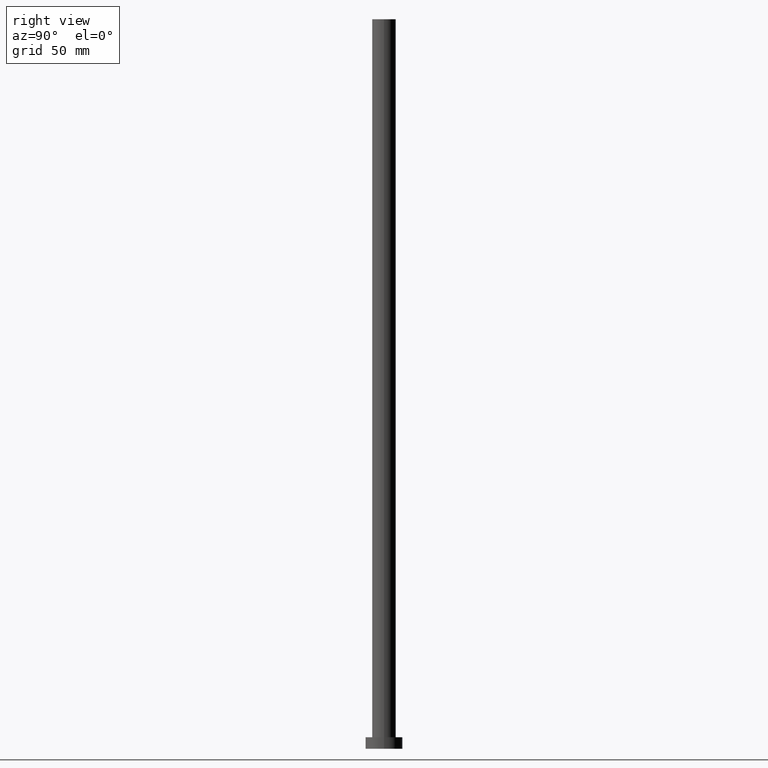
[diagram: clean part render]
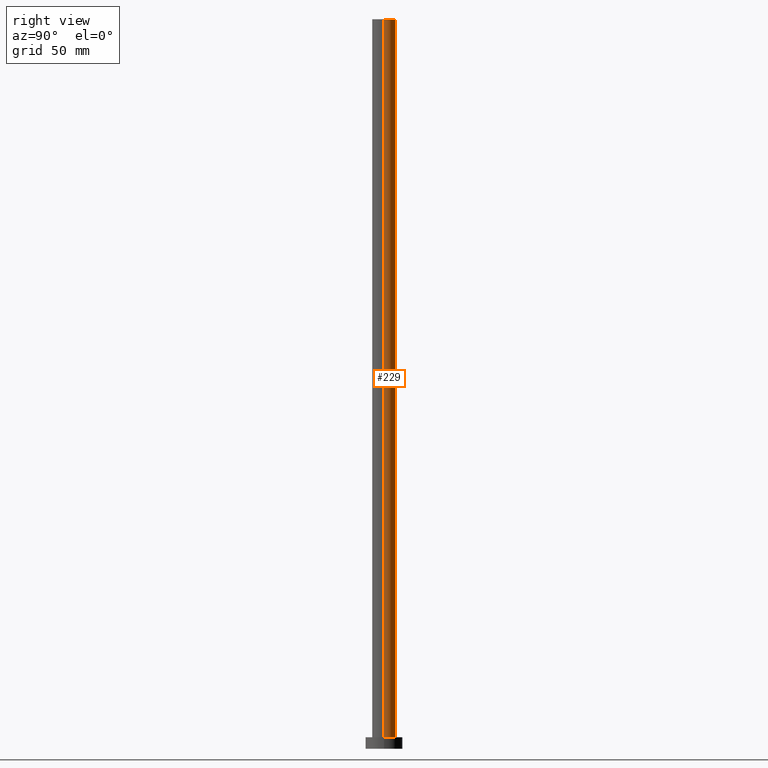
[diagram: same view with one face highlighted and labeled with its STEP entity id]
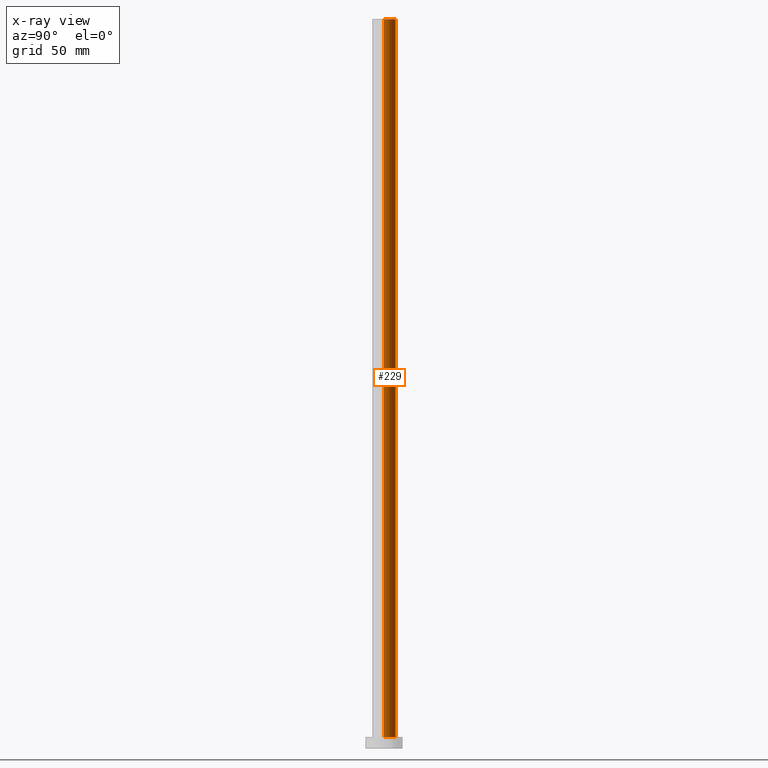
[diagram: x-ray of the same camera — body ghosted, the highlighted face saturated]
A machine part, right view. The second image highlights one B-rep face of the part: STEP entity #229.
The next image is the same camera in x-ray: the body ghosted, the highlighted face saturated — about 0% of this face is hidden behind the body in this view.
In plain terms, the highlighted cylindrical surface (edge-blend (fillet) strip) has radius 5.1 mm, axis along (-0, -0, -1).
Its self-contained STEP definition (entity closure, byte-faithful):
#3 = LINE ( 'NONE', #246, #227 ) ;
#7 = LINE ( 'NONE', #194, #36 ) ;
#10 = EDGE_LOOP ( 'NONE', ( #131, #136, #201, #182 ) ) ;
#24 = CARTESIAN_POINT ( 'NONE',  ( 0.000000000000000000, 0.000000000000000000, 5.000000000000000000 ) ) ;
#25 = DIRECTION ( 'NONE',  ( -1.000000000000000000, 0.000000000000000000, 0.000000000000000000 ) ) ;
#29 = DIRECTION ( 'NONE',  ( -0.000000000000000000, -0.000000000000000000, -1.000000000000000000 ) ) ;
#30 = VERTEX_POINT ( 'NONE', #145 ) ;
#36 = VECTOR ( 'NONE', #109, 1000.000000000000000 ) ;
#48 = CIRCLE ( 'NONE', #207, 5.100000000000001421 ) ;
#51 = VERTEX_POINT ( 'NONE', #163 ) ;
#58 = DIRECTION ( 'NONE',  ( 0.000000000000000000, 0.000000000000000000, 1.000000000000000000 ) ) ;
#61 = CARTESIAN_POINT ( 'NONE',  ( 0.000000000000000000, 0.000000000000000000, 315.0000000000000000 ) ) ;
#64 = DIRECTION ( 'NONE',  ( 1.000000000000000000, 0.000000000000000000, 0.000000000000000000 ) ) ;
#70 = VERTEX_POINT ( 'NONE', #167 ) ;
#83 = CARTESIAN_POINT ( 'NONE',  ( 5.100000000000001421, 6.245698675651502811E-16, 315.0000000000000000 ) ) ;
#89 = CARTESIAN_POINT ( 'NONE',  ( 0.000000000000000000, 0.000000000000000000, 315.0000000000000000 ) ) ;
#92 = VERTEX_POINT ( 'NONE', #83 ) ;
#103 = FACE_OUTER_BOUND ( 'NONE', #10, .T. ) ;
#109 = DIRECTION ( 'NONE',  ( -0.000000000000000000, -0.000000000000000000, -1.000000000000000000 ) ) ;
#128 = EDGE_CURVE ( 'NONE', #92, #70, #251, .T. ) ;
#131 = ORIENTED_EDGE ( 'NONE', *, *, #128, .F. ) ;
#136 = ORIENTED_EDGE ( 'NONE', *, *, #175, .T. ) ;
#145 = CARTESIAN_POINT ( 'NONE',  ( 5.100000000000001421, 6.245698675651502811E-16, 5.000000000000000000 ) ) ;
#163 = CARTESIAN_POINT ( 'NONE',  ( -5.100000000000001421, 0.000000000000000000, 5.000000000000000000 ) ) ;
#167 = CARTESIAN_POINT ( 'NONE',  ( -5.100000000000001421, 0.000000000000000000, 315.0000000000000000 ) ) ;
#175 = EDGE_CURVE ( 'NONE', #92, #30, #3, .T. ) ;
#176 = DIRECTION ( 'NONE',  ( 0.000000000000000000, 0.000000000000000000, 1.000000000000000000 ) ) ;
#182 = ORIENTED_EDGE ( 'NONE', *, *, #254, .F. ) ;
#194 = CARTESIAN_POINT ( 'NONE',  ( -5.100000000000001421, 0.000000000000000000, 315.0000000000000000 ) ) ;
#200 = AXIS2_PLACEMENT_3D ( 'NONE', #89, #29, #25 ) ;
#201 = ORIENTED_EDGE ( 'NONE', *, *, #213, .T. ) ;
#203 = DIRECTION ( 'NONE',  ( 1.000000000000000000, 0.000000000000000000, 0.000000000000000000 ) ) ;
#205 = AXIS2_PLACEMENT_3D ( 'NONE', #61, #58, #203 ) ;
#207 = AXIS2_PLACEMENT_3D ( 'NONE', #24, #176, #64 ) ;
#213 = EDGE_CURVE ( 'NONE', #30, #51, #48, .T. ) ;
#227 = VECTOR ( 'NONE', #228, 1000.000000000000000 ) ;
#228 = DIRECTION ( 'NONE',  ( -0.000000000000000000, -0.000000000000000000, -1.000000000000000000 ) ) ;
#229 = ADVANCED_FACE ( 'NONE', ( #103 ), #237, .T. ) ;
#237 = CYLINDRICAL_SURFACE ( 'NONE', #200, 5.100000000000001421 ) ;
#246 = CARTESIAN_POINT ( 'NONE',  ( 5.100000000000001421, 6.245698675651502811E-16, 315.0000000000000000 ) ) ;
#251 = CIRCLE ( 'NONE', #205, 5.100000000000001421 ) ;
#254 = EDGE_CURVE ( 'NONE', #70, #51, #7, .T. ) ;